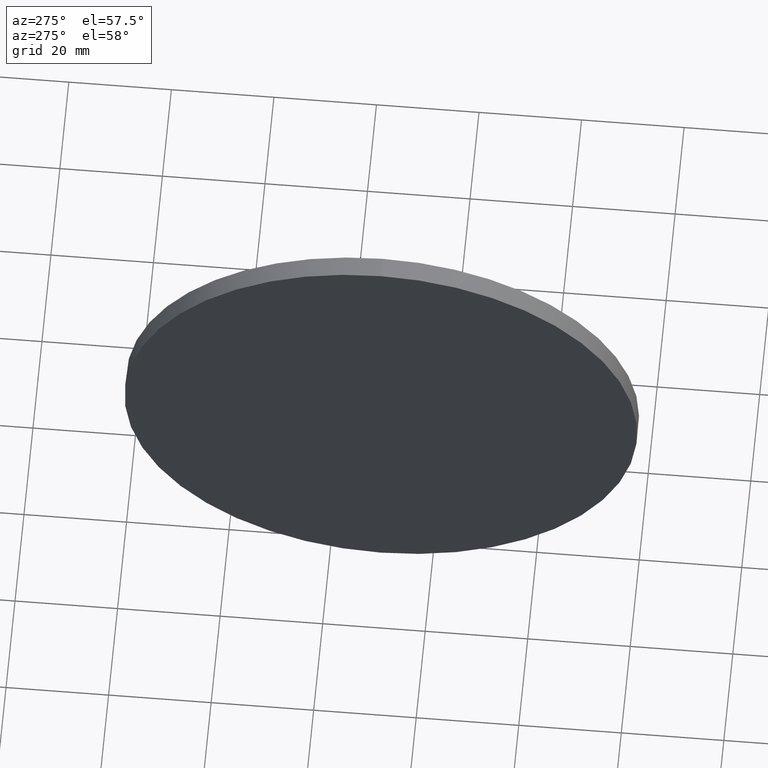
[diagram: clean part render]
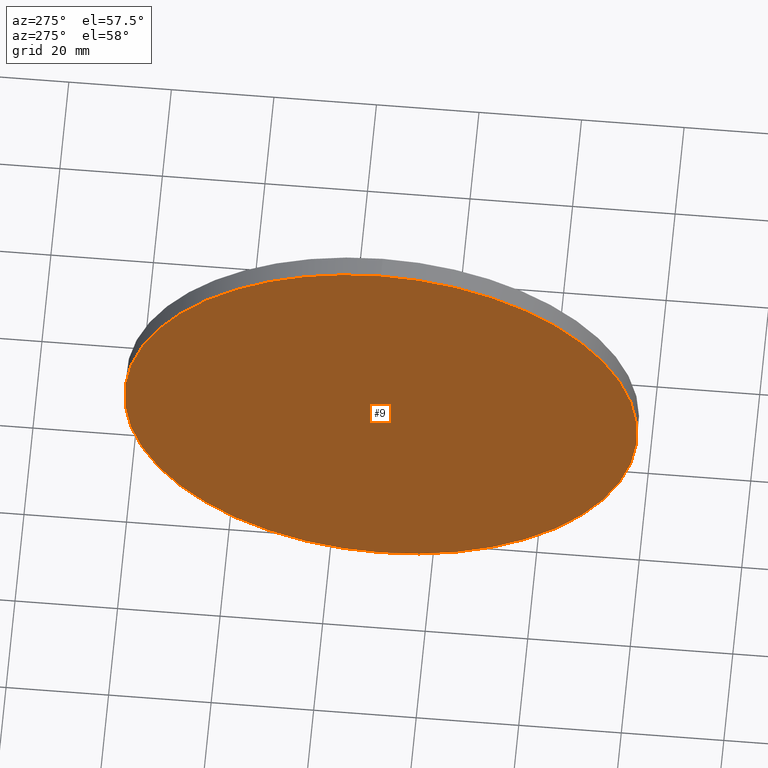
[diagram: same view with one face highlighted and labeled with its STEP entity id]
A machine part, auxiliary view. The second image highlights one B-rep face of the part: STEP entity #9.
In plain terms, the highlighted planar face has unit normal (1, 0, 0).
Its self-contained STEP definition (entity closure, byte-faithful):
#9 = ADVANCED_FACE ( 'NONE', ( #37 ), #142, .F. ) ;
#10 = CIRCLE ( 'NONE', #36, 50.00000000000001400 ) ;
#23 = CIRCLE ( 'NONE', #137, 50.00000000000001400 ) ;
#27 = ORIENTED_EDGE ( 'NONE', *, *, #74, .T. ) ;
#36 = AXIS2_PLACEMENT_3D ( 'NONE', #94, #107, #65 ) ;
#37 = FACE_OUTER_BOUND ( 'NONE', #127, .T. ) ;
#59 = VERTEX_POINT ( 'NONE', #100 ) ;
#65 = DIRECTION ( 'NONE',  ( 0.0000000000000000000, 0.0000000000000000000, 1.000000000000000000 ) ) ;
#72 = DIRECTION ( 'NONE',  ( 1.000000000000000000, 0.0000000000000000000, 0.0000000000000000000 ) ) ;
#74 = EDGE_CURVE ( 'NONE', #59, #145, #23, .T. ) ;
#87 = ORIENTED_EDGE ( 'NONE', *, *, #171, .T. ) ;
#94 = CARTESIAN_POINT ( 'NONE',  ( 235.9389074292314500, 130.0418907599245100, 0.0000000000000000000 ) ) ;
#100 = CARTESIAN_POINT ( 'NONE',  ( 235.9389074292314500, 130.0418907599245100, 50.00000000000001400 ) ) ;
#106 = CARTESIAN_POINT ( 'NONE',  ( 235.9389074292314500, 130.0418907599245100, 0.0000000000000000000 ) ) ;
#107 = DIRECTION ( 'NONE',  ( -1.000000000000000000, -0.0000000000000000000, -0.0000000000000000000 ) ) ;
#109 = AXIS2_PLACEMENT_3D ( 'NONE', #114, #72, #170 ) ;
#114 = CARTESIAN_POINT ( 'NONE',  ( 235.9389074292314500, 130.0418907599245100, 0.0000000000000000000 ) ) ;
#122 = DIRECTION ( 'NONE',  ( -1.000000000000000000, -0.0000000000000000000, -0.0000000000000000000 ) ) ;
#123 = DIRECTION ( 'NONE',  ( 0.0000000000000000000, 0.0000000000000000000, 1.000000000000000000 ) ) ;
#127 = EDGE_LOOP ( 'NONE', ( #27, #87 ) ) ;
#133 = CARTESIAN_POINT ( 'NONE',  ( 235.9389074292314500, 130.0418907599245100, -50.00000000000001400 ) ) ;
#137 = AXIS2_PLACEMENT_3D ( 'NONE', #106, #122, #123 ) ;
#142 = PLANE ( 'NONE',  #109 ) ;
#145 = VERTEX_POINT ( 'NONE', #133 ) ;
#170 = DIRECTION ( 'NONE',  ( 0.0000000000000000000, 0.0000000000000000000, -1.000000000000000000 ) ) ;
#171 = EDGE_CURVE ( 'NONE', #145, #59, #10, .T. ) ;